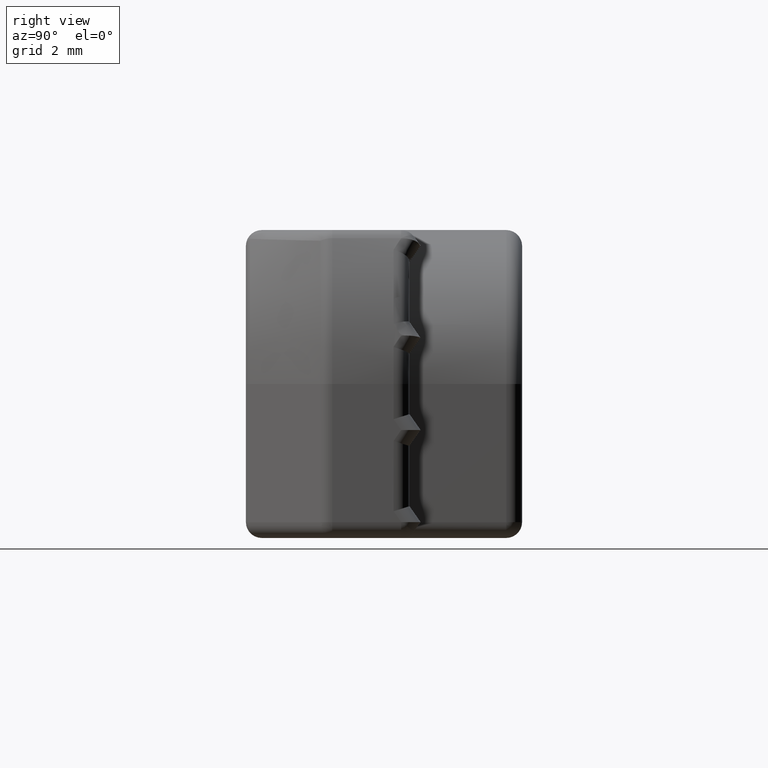
[diagram: clean part render]
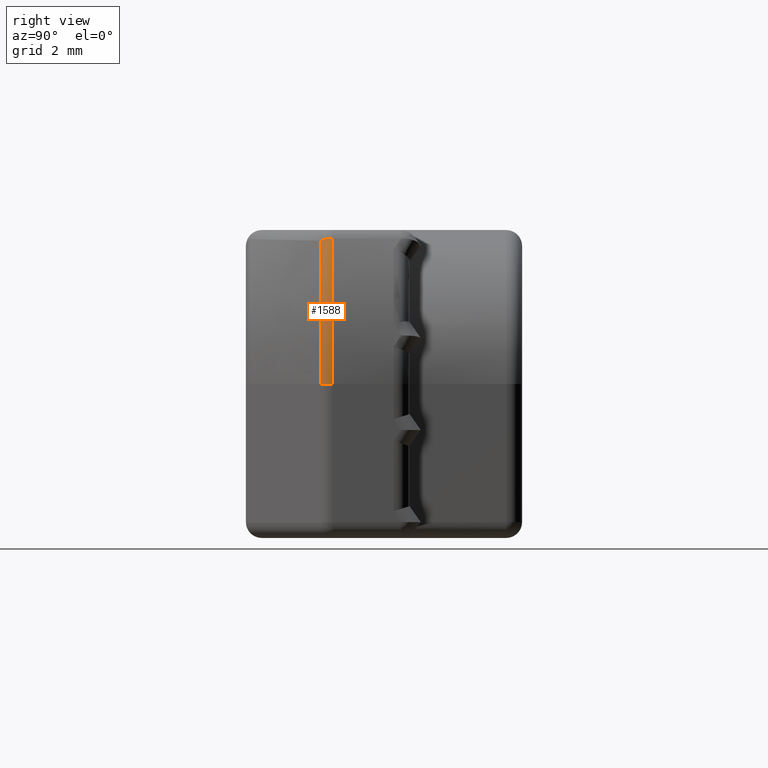
[diagram: same view with one face highlighted and labeled with its STEP entity id]
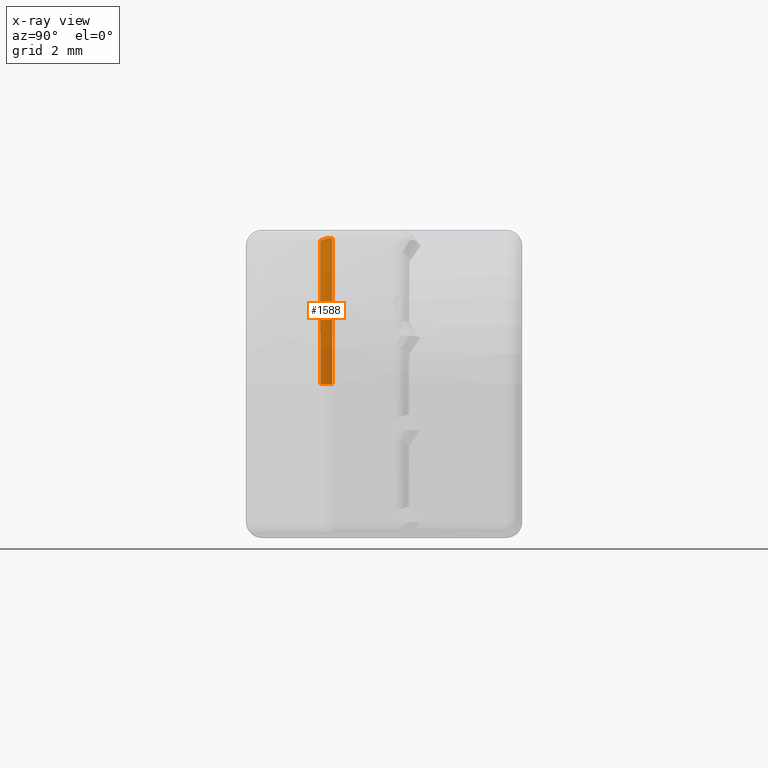
[diagram: x-ray of the same camera — body ghosted, the highlighted face saturated]
A machine part, right view. The second image highlights one B-rep face of the part: STEP entity #1588.
The next image is the same camera in x-ray: the body ghosted, the highlighted face saturated — about 0% of this face is hidden behind the body in this view.
In plain terms, the highlighted toroidal blend (fillet) surface has major radius 9 mm and minor (blend) radius 0.5 mm.
Its self-contained STEP definition (entity closure, byte-faithful):
#116=CIRCLE('',#1750,0.5);
#120=CIRCLE('',#1756,0.5);
#121=CIRCLE('',#1758,9.5);
#122=CIRCLE('',#1759,9.33633639699816);
#150=TOROIDAL_SURFACE('',#1757,9.,0.5);
#233=FACE_OUTER_BOUND('',#342,.T.);
#342=EDGE_LOOP('',(#1204,#1205,#1206,#1207));
#729=VERTEX_POINT('',#2769);
#730=VERTEX_POINT('',#2771);
#734=VERTEX_POINT('',#2810);
#735=VERTEX_POINT('',#2811);
#902=EDGE_CURVE('',#729,#730,#116,.F.);
#908=EDGE_CURVE('',#734,#735,#120,.T.);
#911=EDGE_CURVE('',#734,#729,#121,.T.);
#912=EDGE_CURVE('',#730,#735,#122,.T.);
#1204=ORIENTED_EDGE('',*,*,#908,.F.);
#1205=ORIENTED_EDGE('',*,*,#911,.T.);
#1206=ORIENTED_EDGE('',*,*,#902,.T.);
#1207=ORIENTED_EDGE('',*,*,#912,.T.);
#1588=ADVANCED_FACE('',(#233),#150,.T.);
#1750=AXIS2_PLACEMENT_3D('',#2773,#2103,#2104);
#1756=AXIS2_PLACEMENT_3D('',#2812,#2115,#2116);
#1757=AXIS2_PLACEMENT_3D('',#2815,#2119,#2120);
#1758=AXIS2_PLACEMENT_3D('',#2816,#2121,#2122);
#1759=AXIS2_PLACEMENT_3D('',#2817,#2123,#2124);
#2103=DIRECTION('center_axis',(-0.483333333333333,-1.8432929665872E-13,
0.87543639911126));
#2104=DIRECTION('ref_axis',(0.87543639911126,0.,0.483333333333333));
#2115=DIRECTION('center_axis',(0.,0.,-1.));
#2116=DIRECTION('ref_axis',(1.,0.,0.));
#2119=DIRECTION('center_axis',(0.,-1.,0.));
#2120=DIRECTION('ref_axis',(0.,0.,-1.));
#2121=DIRECTION('center_axis',(0.,-1.,0.));
#2122=DIRECTION('ref_axis',(0.96432933404487,0.,0.264705374899297));
#2123=DIRECTION('center_axis',(4.1597613613867E-17,1.,7.30748429529601E-17));
#2124=DIRECTION('ref_axis',(0.96432933404487,-5.94571027336868E-17,0.264705374899297));
#2769=CARTESIAN_POINT('',(8.31664579155697,-2.77881505694007,4.59166666666667));
#2771=CARTESIAN_POINT('',(8.17336871627949,-3.14878509363804,4.51256259188238));
#2773=CARTESIAN_POINT('Origin',(7.87892759200134,-2.77881505694007,4.35));
#2810=CARTESIAN_POINT('',(9.5,-2.77881505694007,0.));
#2811=CARTESIAN_POINT('',(9.33633639699816,-3.14878509363804,0.));
#2812=CARTESIAN_POINT('Origin',(9.,-2.77881505694007,0.));
#2815=CARTESIAN_POINT('Origin',(0.,-2.77881505694007,0.));
#2816=CARTESIAN_POINT('Origin',(0.,-2.77881505694007,0.));
#2817=CARTESIAN_POINT('Origin',(0.,-3.14878509363804,-4.16333634234434E-16));